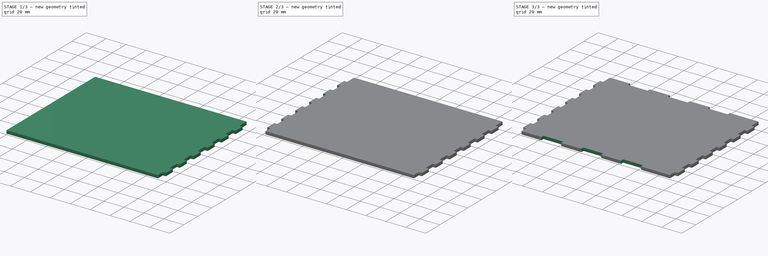
[diagram: build sequence overview — one tinted view per stage of 3, left to right]
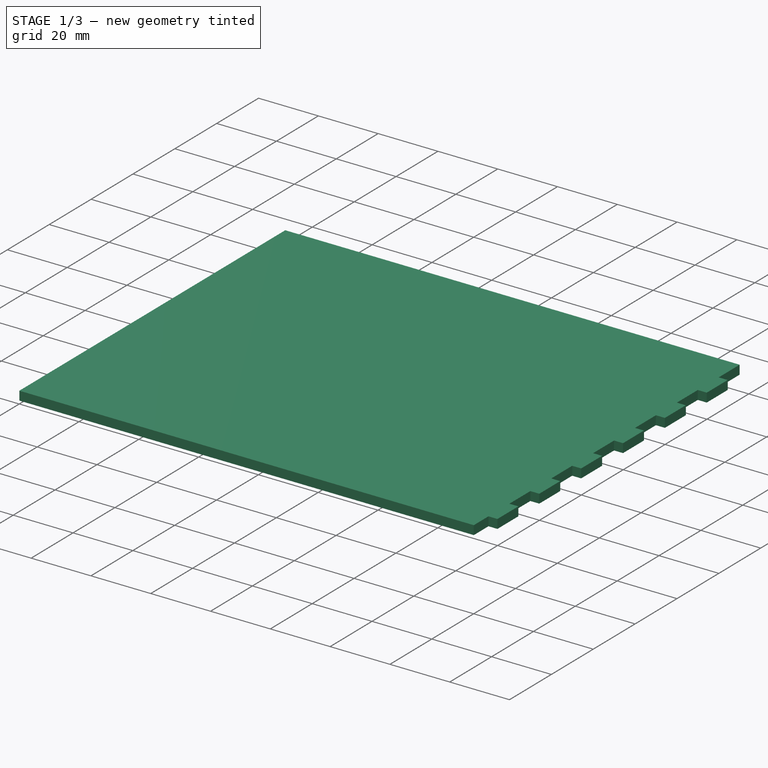
[diagram: stage 1 of 3 — iso view after this stage's code; geometry added in this stage tinted green]
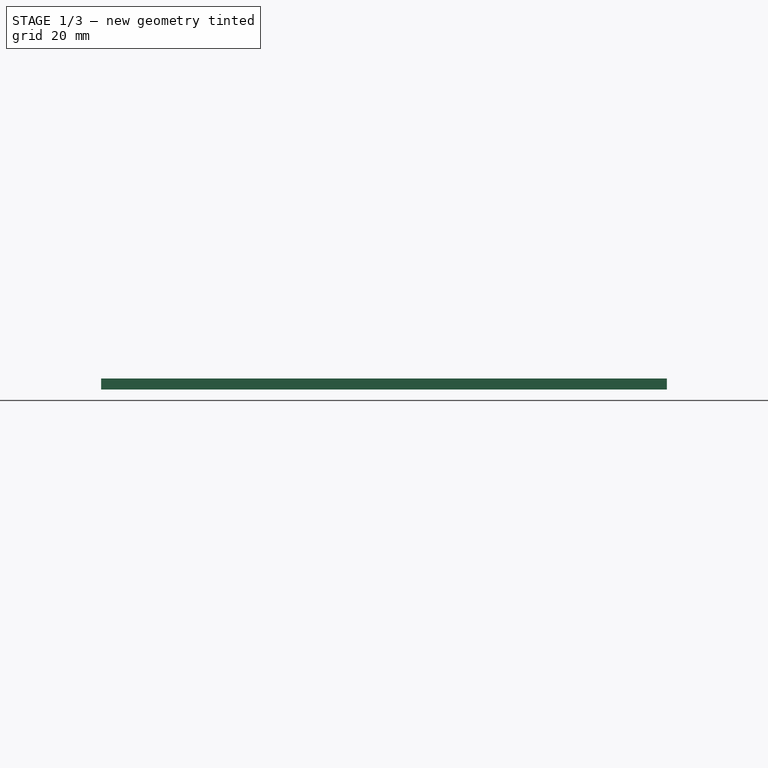
[diagram: stage 1 of 3 — front view after this stage's code; geometry added in this stage tinted green]
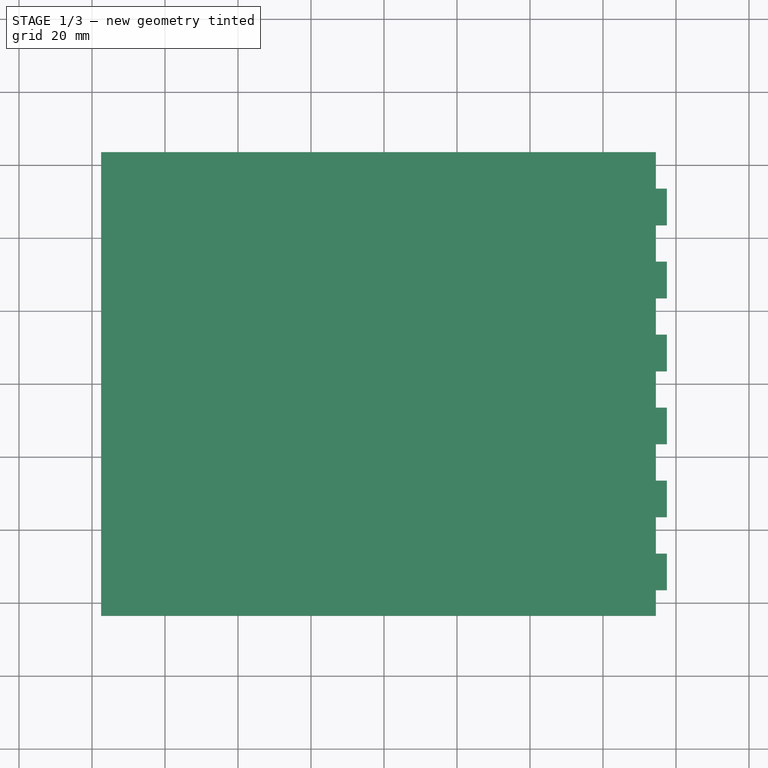
[diagram: stage 1 of 3 — top view after this stage's code; geometry added in this stage tinted green]
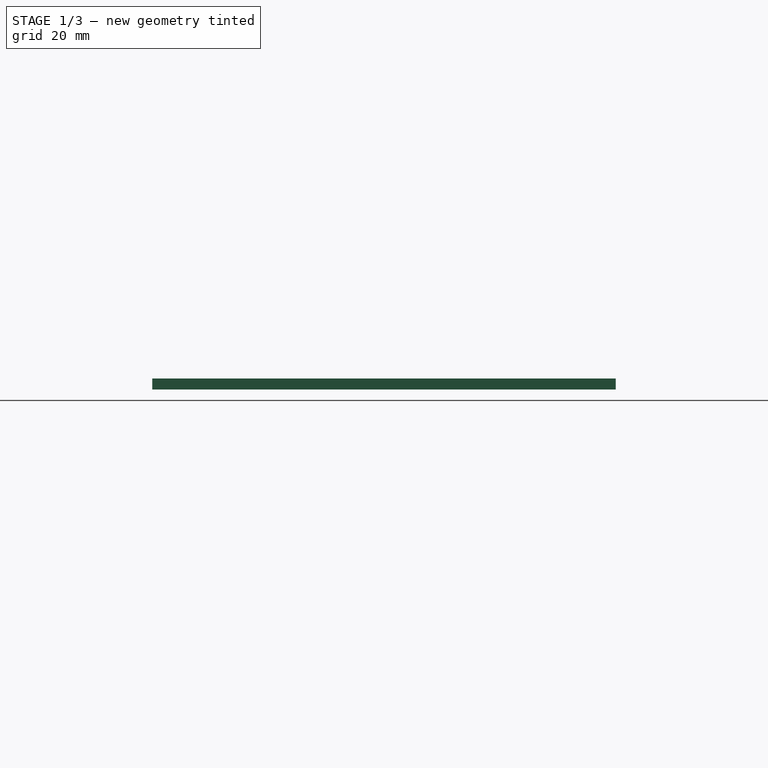
[diagram: stage 1 of 3 — right view after this stage's code; geometry added in this stage tinted green]
FCSTD DOCUMENT  (FreeCAD 0.19R24267 +148 (Git))
Label: BaseDrawer
License: All rights reserved
LicenseURL: http://en.wikipedia.org/wiki/All_rights_reserved
objects: Sketcher::SketchObject×3, PartDesign::Pocket×2, PartDesign::Mirrored×2, PartDesign::Pad×1, PartDesign::Body×1
note: 12 computed .brp shape members not serialized (recipe doc carries the construction recipe); baked Part::Feature solids carry a one-line shape summary decoded from their .brp

FEATURE [Sketcher::SketchObject] Sketch
  FullyConstrained = true
  MapMode = 5
  Support = -> [XY_Plane]
  sketch-geometry (4):
    g0: LineSegment StartX=-77.5 StartY=-63.5 StartZ=0 EndX=77.5 EndY=-63.5 EndZ=0
    g1: LineSegment StartX=77.5 StartY=-63.5 StartZ=0 EndX=77.5 EndY=63.5 EndZ=0
    g2: LineSegment StartX=77.5 StartY=63.5 StartZ=0 EndX=-77.5 EndY=63.5 EndZ=0
    g3: LineSegment StartX=-77.5 StartY=63.5 StartZ=0 EndX=-77.5 EndY=-63.5 EndZ=0
  constraints (10):
    c: Coincident(g0,g1)
    c: Coincident(g1,g2)
    c: Coincident(g2,g3)
    c: Coincident(g3,g0)
    c: Horizontal(g0)
    c: Vertical(g3)
    c: Symmetric(g1,g2,g-2)
    c: Symmetric(g0,g1,g-1)
    c: Distance(g0) = 155
    c: Distance(g1) = 127
FEATURE [PartDesign::Pad] Pad
  Direction = (1,1,1)
  Length = 3
  Length2 = 100
  Profile = -> Sketch
  Refine = true
  Type = 0
FEATURE [Sketcher::SketchObject] Sketch001
  ExternalGeometry = -> [Pad]
  FullyConstrained = true
  MapMode = 5
  Placement = pos=(0,0,3) rot=(0,0,1;0rad)
  Support = -> [Pad]
  sketch-geometry (34):
    g0: LineSegment StartX=77.5 StartY=63.5 StartZ=0 EndX=74.5 EndY=63.5 EndZ=0
    g1: LineSegment StartX=74.5 StartY=63.5 StartZ=0 EndX=74.5 EndY=53.5 EndZ=0
    g2: LineSegment StartX=74.5 StartY=53.5 StartZ=0 EndX=77.5 EndY=53.5 EndZ=0
    g3: LineSegment StartX=77.5 StartY=53.5 StartZ=0 EndX=77.5 EndY=63.5 EndZ=0
    g4: LineSegment StartX=77.5 StartY=43.5 StartZ=0 EndX=74.5 EndY=43.5 EndZ=0
    g5: LineSegment StartX=74.5 StartY=43.5 StartZ=0 EndX=74.5 EndY=33.5 EndZ=0
    g6: LineSegment StartX=74.5 StartY=33.5 StartZ=0 EndX=77.5 EndY=33.5 EndZ=0
    g7: LineSegment StartX=77.5 StartY=33.5 StartZ=0 EndX=77.5 EndY=43.5 EndZ=0
    g8: LineSegment StartX=77.5 StartY=63.5 StartZ=0 EndX=77.5 EndY=43.5 EndZ=0
    g9: LineSegment StartX=77.5 StartY=23.5 StartZ=0 EndX=74.5 EndY=23.5 EndZ=0
    g10: LineSegment StartX=74.5 StartY=23.5 StartZ=0 EndX=74.5 EndY=13.5 EndZ=0
    g11: LineSegment StartX=74.5 StartY=13.5 StartZ=0 EndX=77.5 EndY=13.5 EndZ=0
    g12: LineSegment StartX=77.5 StartY=13.5 StartZ=0 EndX=77.5 EndY=23.5 EndZ=0
    g13: LineSegment StartX=77.5 StartY=43.5 StartZ=0 EndX=77.5 EndY=23.5 EndZ=0
    g14: LineSegment StartX=77.5 StartY=3.5 StartZ=0 EndX=74.5 EndY=3.5 EndZ=0
    g15: LineSegment StartX=74.5 StartY=3.5 StartZ=0 EndX=74.5 EndY=-6.5 EndZ=0
    g16: LineSegment StartX=74.5 StartY=-6.5 StartZ=0 EndX=77.5 EndY=-6.5 EndZ=0
    g17: LineSegment StartX=77.5 StartY=-6.5 StartZ=0 EndX=77.5 EndY=3.5 EndZ=0
    g18: LineSegment StartX=77.5 StartY=23.5 StartZ=0 EndX=77.5 EndY=3.5 EndZ=0
    g19: LineSegment StartX=77.5 StartY=-16.5 StartZ=0 EndX=74.5 EndY=-16.5 EndZ=0
    g20: LineSegment StartX=74.5 StartY=-16.5 StartZ=0 EndX=74.5 EndY=-26.5 EndZ=0
    g21: LineSegment StartX=74.5 StartY=-26.5 StartZ=0 EndX=77.5 EndY=-26.5 EndZ=0
    g22: LineSegment StartX=77.5 StartY=-26.5 StartZ=0 EndX=77.5 EndY=-16.5 EndZ=0
    g23: LineSegment StartX=77.5 StartY=3.5 StartZ=0 EndX=77.5 EndY=-16.5 EndZ=0
    g24: LineSegment StartX=77.5 StartY=-36.5 StartZ=0 EndX=74.5 EndY=-36.5 EndZ=0
    g25: LineSegment StartX=74.5 StartY=-36.5 StartZ=0 EndX=74.5 EndY=-46.5 EndZ=0
    g26: LineSegment StartX=74.5 StartY=-46.5 StartZ=0 EndX=77.5 EndY=-46.5 EndZ=0
    g27: LineSegment StartX=77.5 StartY=-46.5 StartZ=0 EndX=77.5 EndY=-36.5 EndZ=0
    g28: LineSegment StartX=77.5 StartY=-16.5 StartZ=0 EndX=77.5 EndY=-36.5 EndZ=0
    g29: LineSegment StartX=77.5 StartY=-56.5 StartZ=0 EndX=74.5 EndY=-56.5 EndZ=0
    g30: LineSegment StartX=74.5 StartY=-56.5 StartZ=0 EndX=74.5 EndY=-66.5 EndZ=0
    g31: LineSegment StartX=74.5 StartY=-66.5 StartZ=0 EndX=77.5 EndY=-66.5 EndZ=0
    g32: LineSegment StartX=77.5 StartY=-66.5 StartZ=0 EndX=77.5 EndY=-56.5 EndZ=0
    g33: LineSegment StartX=77.5 StartY=-36.5 StartZ=0 EndX=77.5 EndY=-56.5 EndZ=0
  constraints (95):
    c: Coincident(g0,g1)
    c: Coincident(g1,g2)
    c: Coincident(g2,g3)
    c: Coincident(g3,g0)
    c: Horizontal(g0)
    c: Horizontal(g2)
    c: Vertical(g1)
    c: Vertical(g3)
    c: Coincident(g0,g-3)
    c: Distance(g0) = 3
    c: Distance(g3) = 10
    c: Coincident(g4,g5)
    c: Coincident(g5,g6)
    c: Coincident(g6,g7)
    c: Coincident(g7,g4)
    c: Horizontal(g4)
    c: Horizontal(g6)
    c: Vertical(g5)
    c: Vertical(g7)
    c: Equal(g0,g4) = 3
    c: Equal(g3,g7) = 10
    c: Coincident(g0,g8)
    c: Coincident(g4,g8)
    c: Distance(g8) = 20
    c: Coincident(g9,g10)
    c: Coincident(g10,g11)
    c: Coincident(g11,g12)
    c: Coincident(g12,g9)
    c: Horizontal(g9)
    c: Horizontal(g11)
    c: Vertical(g10)
    c: Vertical(g12)
    c: Equal(g0,g9) = 3
    c: Equal(g3,g12) = 10
    c: Coincident(g4,g13)
    c: Coincident(g9,g13)
    c: Equal(g8,g13)
    c: Parallel(g13,g8)
    c: Coincident(g14,g15)
    c: Coincident(g15,g16)
    c: Coincident(g16,g17)
    c: Coincident(g17,g14)
    c: Horizontal(g14)
    c: Horizontal(g16)
    c: Vertical(g15)
    c: Vertical(g17)
    c: Equal(g0,g14) = 3
    c: Equal(g3,g17) = 10
    c: Coincident(g9,g18)
    c: Coincident(g14,g18)
    c: Equal(g8,g18)
    c: Parallel(g18,g8)
    c: Coincident(g19,g20)
    c: Coincident(g20,g21)
    c: Coincident(g21,g22)
    c: Coincident(g22,g19)
    c: Horizontal(g19)
    c: Horizontal(g21)
    c: Vertical(g20)
    c: Vertical(g22)
    c: Equal(g0,g19) = 3
    c: Equal(g3,g22) = 10
    c: Coincident(g14,g23)
    c: Coincident(g19,g23)
    c: Equal(g8,g23)
    c: Parallel(g23,g8)
    c: Coincident(g24,g25)
    c: Coincident(g25,g26)
    c: Coincident(g26,g27)
    c: Coincident(g27,g24)
    c: Horizontal(g24)
    c: Horizontal(g26)
    c: Vertical(g25)
    c: Vertical(g27)
    c: Equal(g0,g24) = 3
    c: Equal(g3,g27) = 10
    c: Coincident(g19,g28)
    c: Coincident(g24,g28)
    c: Equal(g8,g28)
    c: Parallel(g28,g8)
    c: Coincident(g29,g30)
    c: Coincident(g30,g31)
    c: Coincident(g31,g32)
    c: Coincident(g32,g29)
    c: Horizontal(g29)
    c: Horizontal(g31)
    c: Vertical(g30)
    c: Vertical(g32)
    c: Equal(g0,g29) = 3
    c: Equal(g3,g32) = 10
    c: Coincident(g24,g33)
    c: Coincident(g29,g33)
    c: Equal(g8,g33)
    c: Parallel(g33,g8)
    c: Vertical(g8)
FEATURE [PartDesign::Pocket] Pocket  label="RightCrenel"
  BaseFeature = -> Pad
  Length = 5
  Length2 = 100
  Profile = -> Sketch001
  Refine = true
  Type = 1
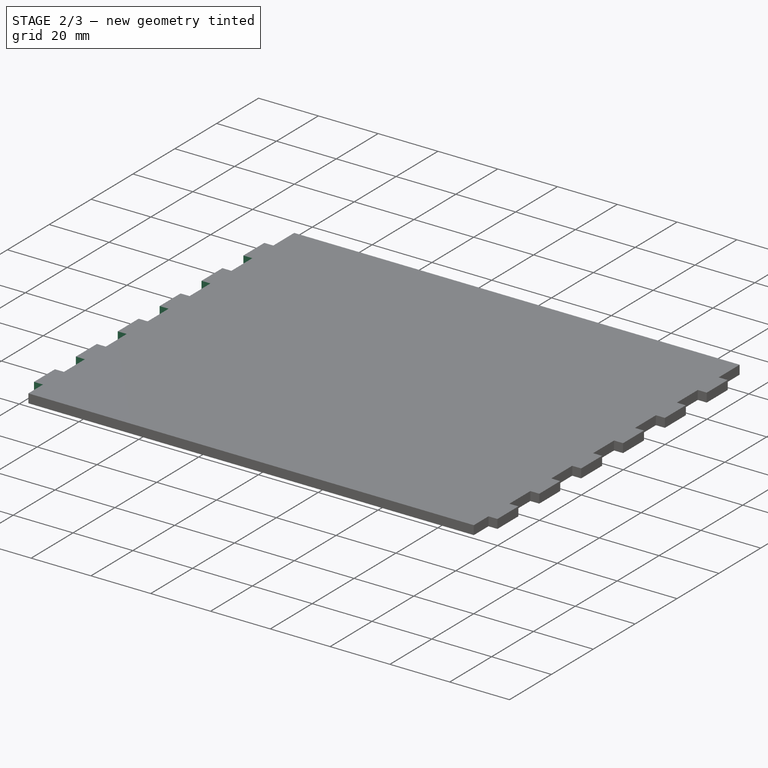
[diagram: stage 2 of 3 — iso view after this stage's code; geometry added in this stage tinted green]
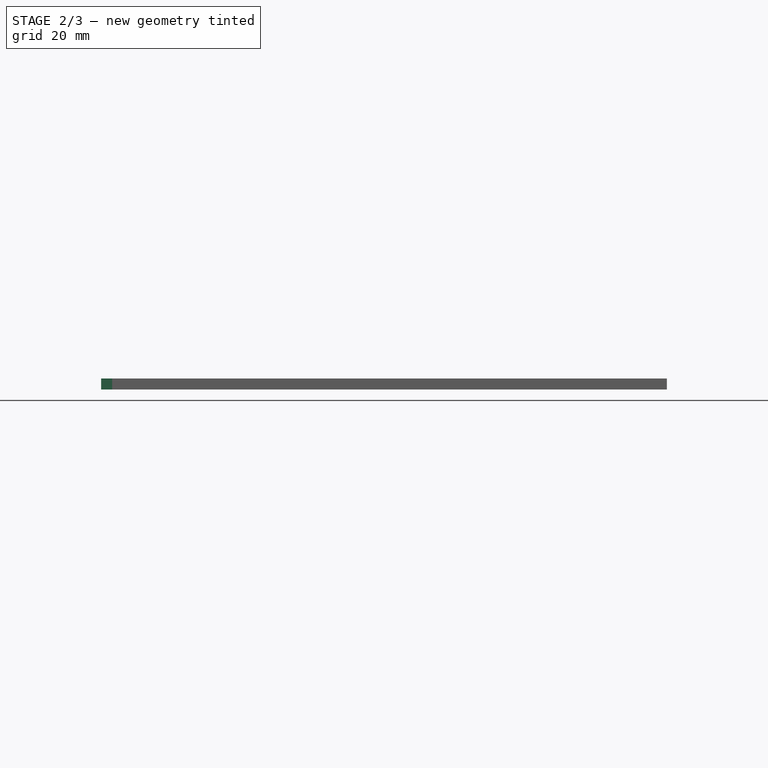
[diagram: stage 2 of 3 — front view after this stage's code; geometry added in this stage tinted green]
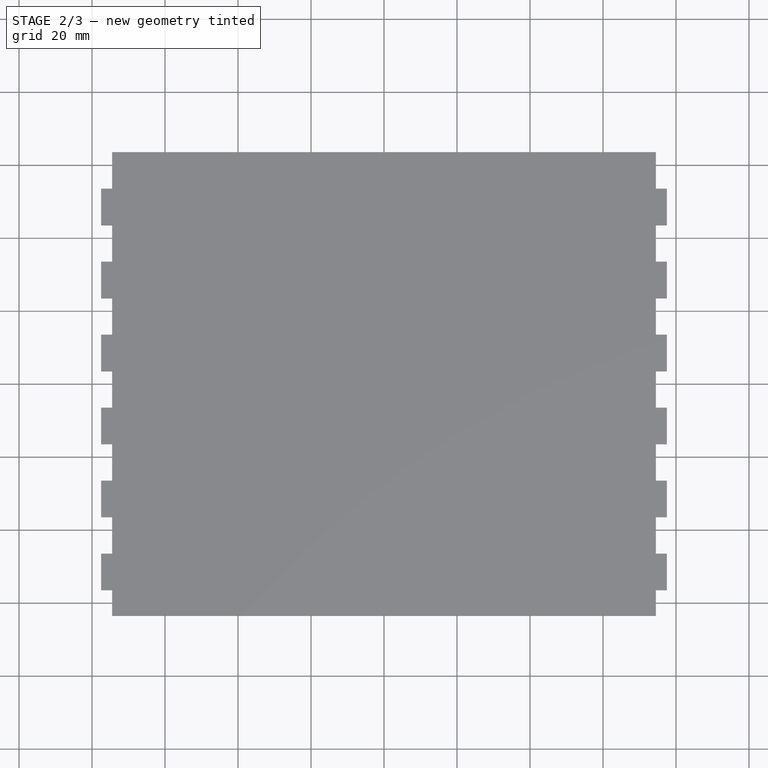
[diagram: stage 2 of 3 — top view after this stage's code; geometry added in this stage tinted green]
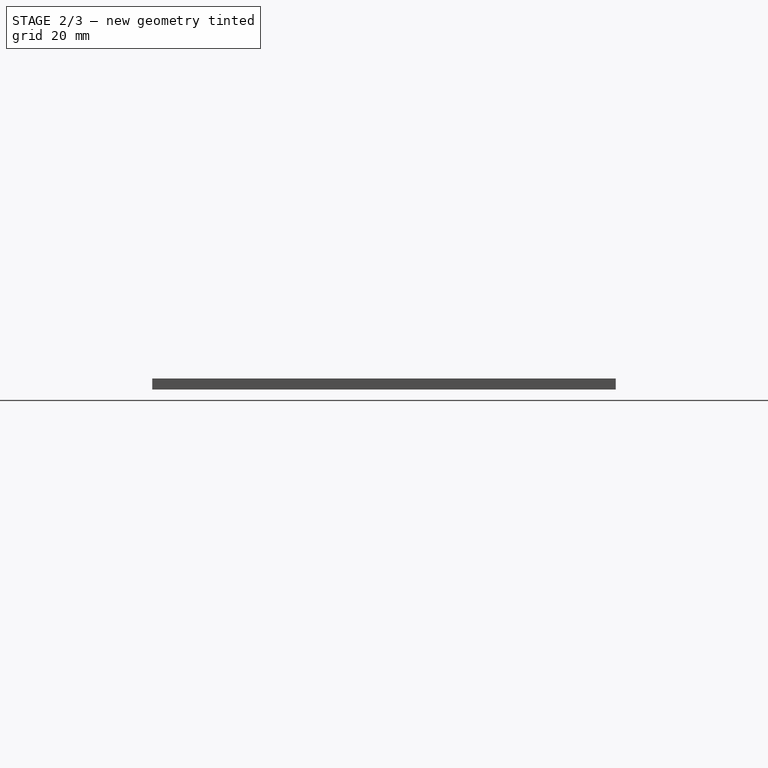
[diagram: stage 2 of 3 — right view after this stage's code; geometry added in this stage tinted green]
FEATURE [PartDesign::Mirrored] Mirrored  label="LeftCrenel"
  BaseFeature = -> Pocket
  MirrorPlane = -> Sketch001 [V_Axis]
  Originals = -> [Pocket]
  Refine = true
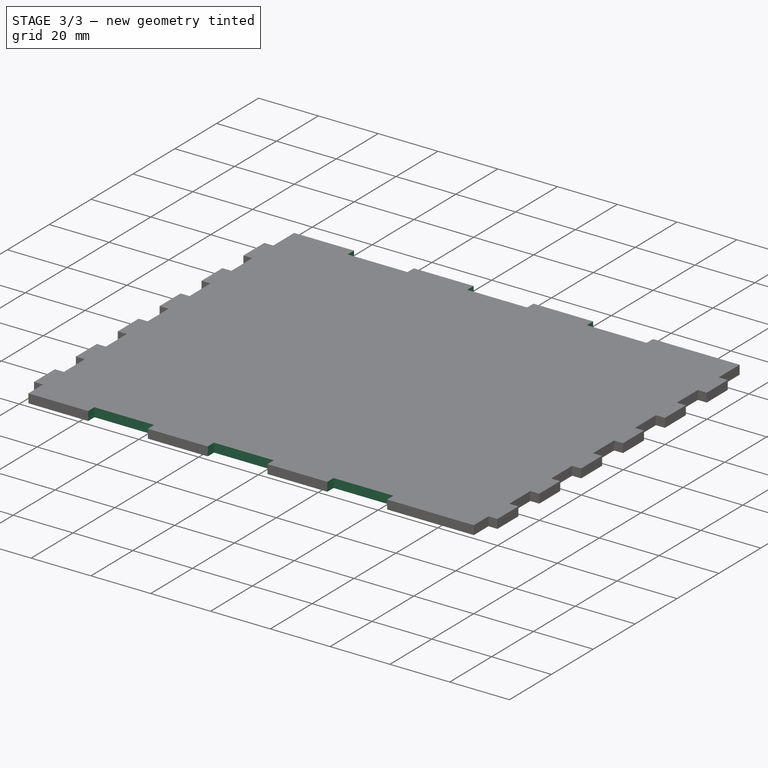
[diagram: stage 3 of 3 — iso view after this stage's code; geometry added in this stage tinted green]
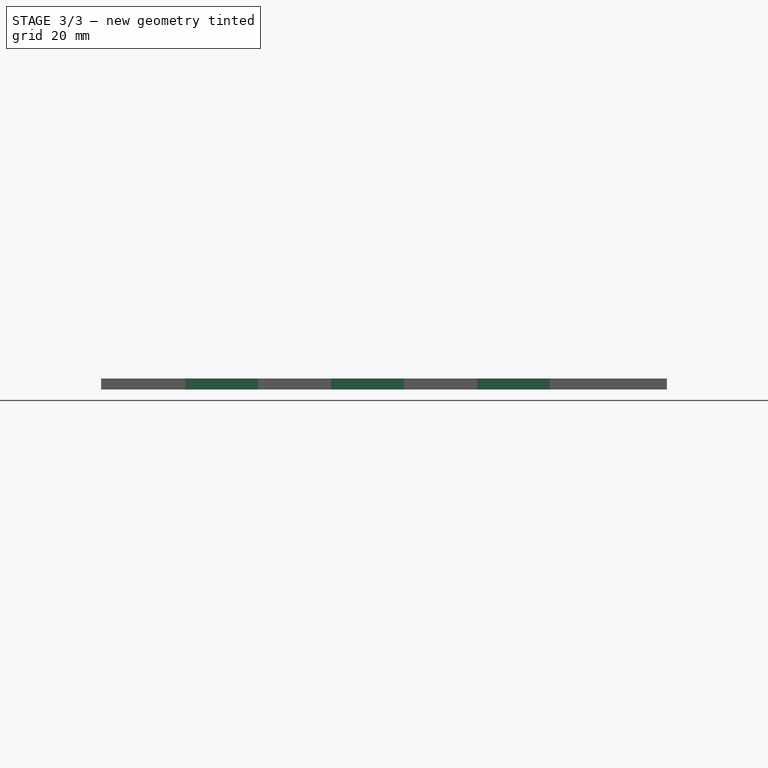
[diagram: stage 3 of 3 — front view after this stage's code; geometry added in this stage tinted green]
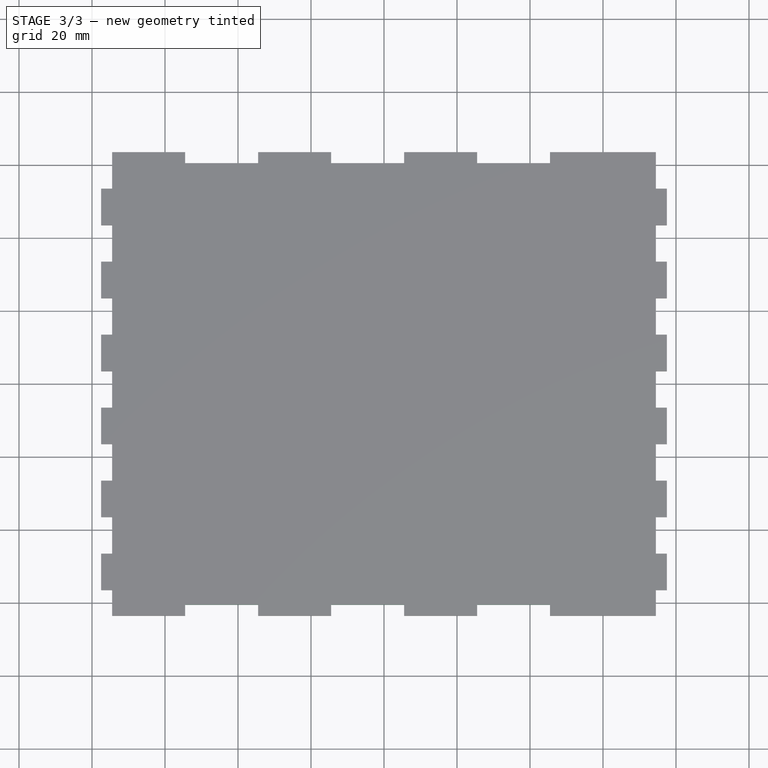
[diagram: stage 3 of 3 — top view after this stage's code; geometry added in this stage tinted green]
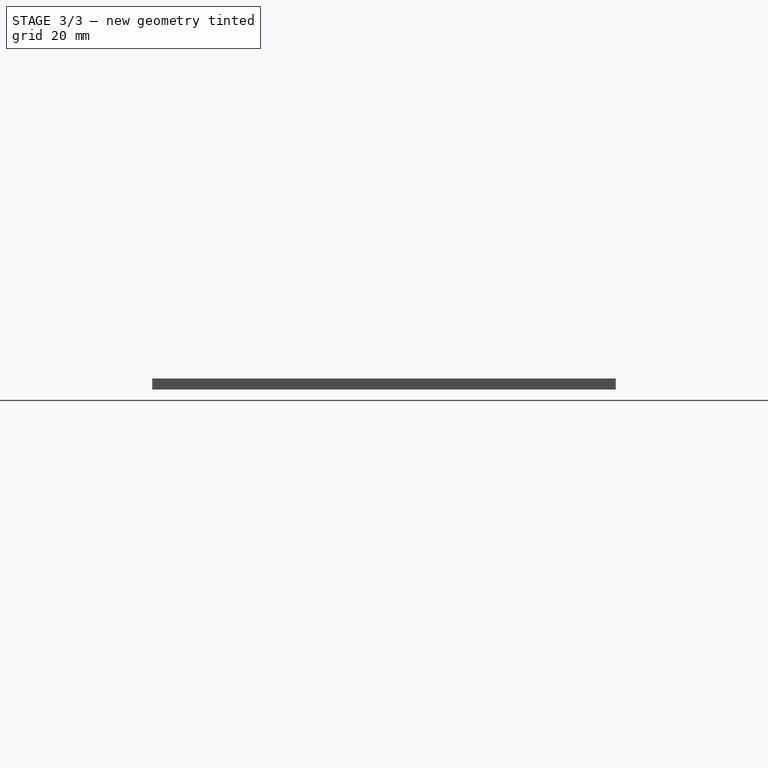
[diagram: stage 3 of 3 — right view after this stage's code; geometry added in this stage tinted green]
FEATURE [Sketcher::SketchObject] Sketch002
  ExternalGeometry = -> [Mirrored]
  FullyConstrained = true
  MapMode = 5
  Placement = pos=(0,0,3) rot=(0,0,1;0rad)
  Support = -> [Mirrored]
  sketch-geometry (14):
    g0: LineSegment StartX=-54.5 StartY=-63.5 StartZ=0 EndX=-34.5 EndY=-63.5 EndZ=0
    g1: LineSegment StartX=-34.5 StartY=-63.5 StartZ=0 EndX=-34.5 EndY=-60.5 EndZ=0
    g2: LineSegment StartX=-34.5 StartY=-60.5 StartZ=0 EndX=-54.5 EndY=-60.5 EndZ=0
    g3: LineSegment StartX=-54.5 StartY=-60.5 StartZ=0 EndX=-54.5 EndY=-63.5 EndZ=0
    g4: LineSegment StartX=-14.5 StartY=-63.5 StartZ=0 EndX=5.5 EndY=-63.5 EndZ=0
    g5: LineSegment StartX=5.5 StartY=-63.5 StartZ=0 EndX=5.5 EndY=-60.5 EndZ=0
    g6: LineSegment StartX=5.5 StartY=-60.5 StartZ=0 EndX=-14.5 EndY=-60.5 EndZ=0
    g7: LineSegment StartX=-14.5 StartY=-60.5 StartZ=0 EndX=-14.5 EndY=-63.5 EndZ=0
    g8: LineSegment StartX=-54.5 StartY=-63.5 StartZ=0 EndX=-14.5 EndY=-63.5 EndZ=0
    g9: LineSegment StartX=25.5 StartY=-63.5 StartZ=0 EndX=45.5 EndY=-63.5 EndZ=0
    g10: LineSegment StartX=45.5 StartY=-63.5 StartZ=0 EndX=45.5 EndY=-60.5 EndZ=0
    g11: LineSegment StartX=45.5 StartY=-60.5 StartZ=0 EndX=25.5 EndY=-60.5 EndZ=0
    g12: LineSegment StartX=25.5 StartY=-60.5 StartZ=0 EndX=25.5 EndY=-63.5 EndZ=0
    g13: LineSegment StartX=-14.5 StartY=-63.5 StartZ=0 EndX=25.5 EndY=-63.5 EndZ=0
  constraints (40):
    c: Coincident(g0,g1)
    c: Coincident(g1,g2)
    c: Coincident(g2,g3)
    c: Coincident(g3,g0)
    c: Horizontal(g0)
    c: Horizontal(g2)
    c: Vertical(g1)
    c: Vertical(g3)
    c: Horizontal(g0,g-3)
    c: Distance(g2) = 20
    c: Distance(g1) = 3
    c: DistanceX(g-3,g0) = 20
    c: Coincident(g4,g5)
    c: Coincident(g5,g6)
    c: Coincident(g6,g7)
    c: Coincident(g7,g4)
    c: Horizontal(g4)
    c: Horizontal(g6)
    c: Vertical(g5)
    c: Vertical(g7)
    c: Equal(g2,g6) = 20
    c: Equal(g1,g5) = 3
    c: Coincident(g0,g8)
    c: Coincident(g4,g8)
    c: Distance(g8) = 40
    c: Coincident(g9,g10)
    c: Coincident(g10,g11)
    c: Coincident(g11,g12)
    c: Coincident(g12,g9)
    c: Horizontal(g9)
    c: Horizontal(g11)
    c: Vertical(g10)
    c: Vertical(g12)
    c: Equal(g2,g11) = 20
    c: Equal(g1,g10) = 3
    c: Coincident(g4,g13)
    c: Coincident(g9,g13)
    c: Equal(g8,g13)
    c: Parallel(g13,g8)
    c: Horizontal(g8)
FEATURE [PartDesign::Pocket] Pocket001  label="FrontCrenel"
  BaseFeature = -> Mirrored
  Length = 5
  Length2 = 100
  Profile = -> Sketch002
  Refine = true
  Type = 1
FEATURE [PartDesign::Mirrored] Mirrored001  label="BackCrenel"
  BaseFeature = -> Pocket001
  MirrorPlane = -> Sketch002 [H_Axis]
  Originals = -> [Pocket001]
  Refine = true
FEATURE [PartDesign::Body] Body
  Group = -> [Sketch,Pad,Sketch001,Pocket,Mirrored,Sketch002,Pocket001,Mirrored001]
  Origin = -> Origin
  Tip = -> Mirrored001
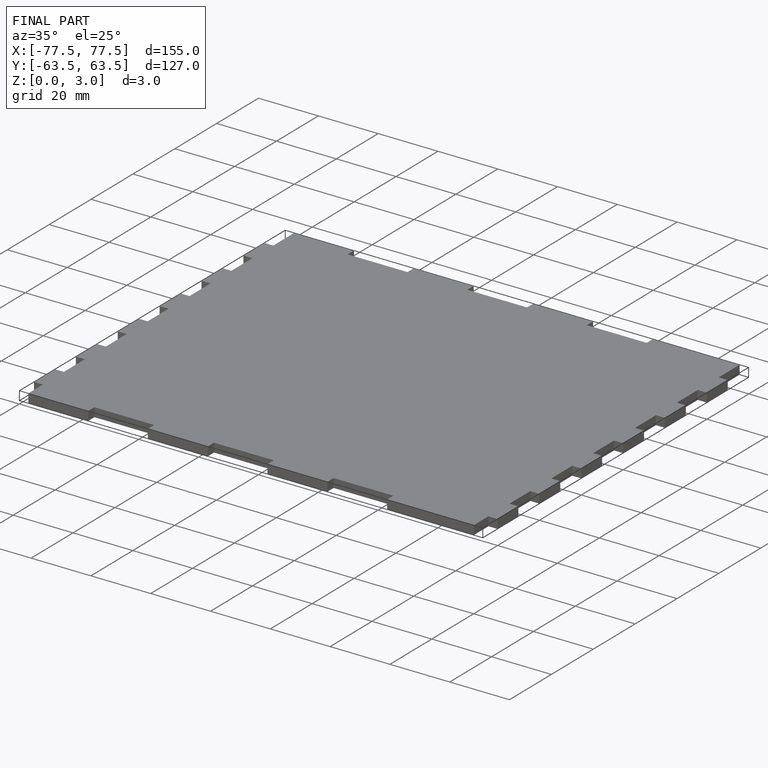
[diagram: finished part — iso view with bounding-box wireframe]
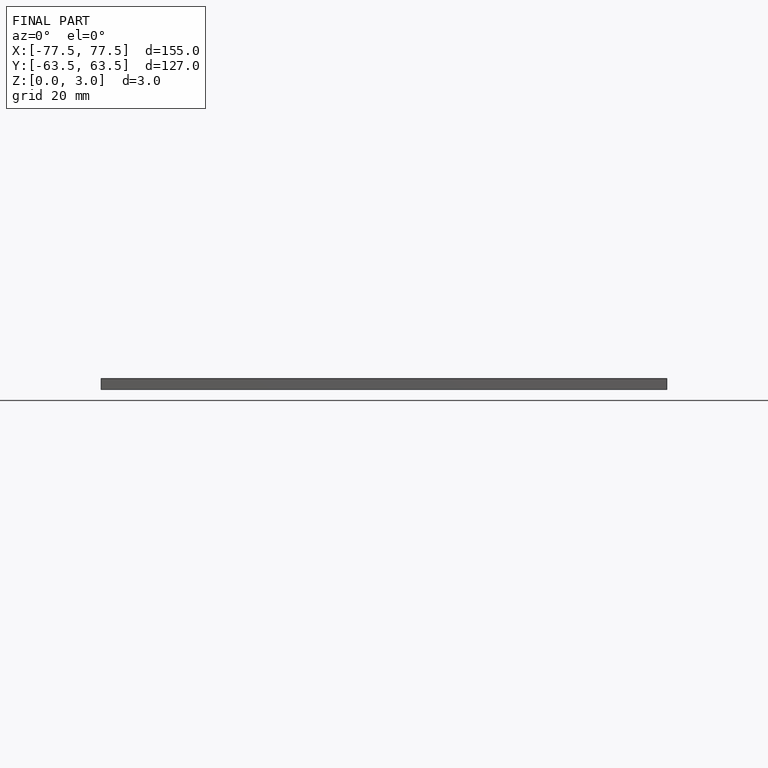
[diagram: finished part — front view with bounding-box wireframe]
